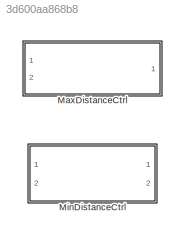
MODEL slx_3d600aa868b8
KIND library
CONFIG AbsTol = auto
CONFIG EnableMultiTasking = off
CONFIG FixedStep = auto
CONFIG MaxStep = auto
CONFIG MinStep = auto
CONFIG RelTol = 1e-3
CONFIG SampleTimeConstraint = Unconstrained
CONFIG Solver = VariableStepAuto
CONFIG SolverName = VariableStepAuto
CONFIG StartTime = 0.0
CONFIG StopTime = 10.0
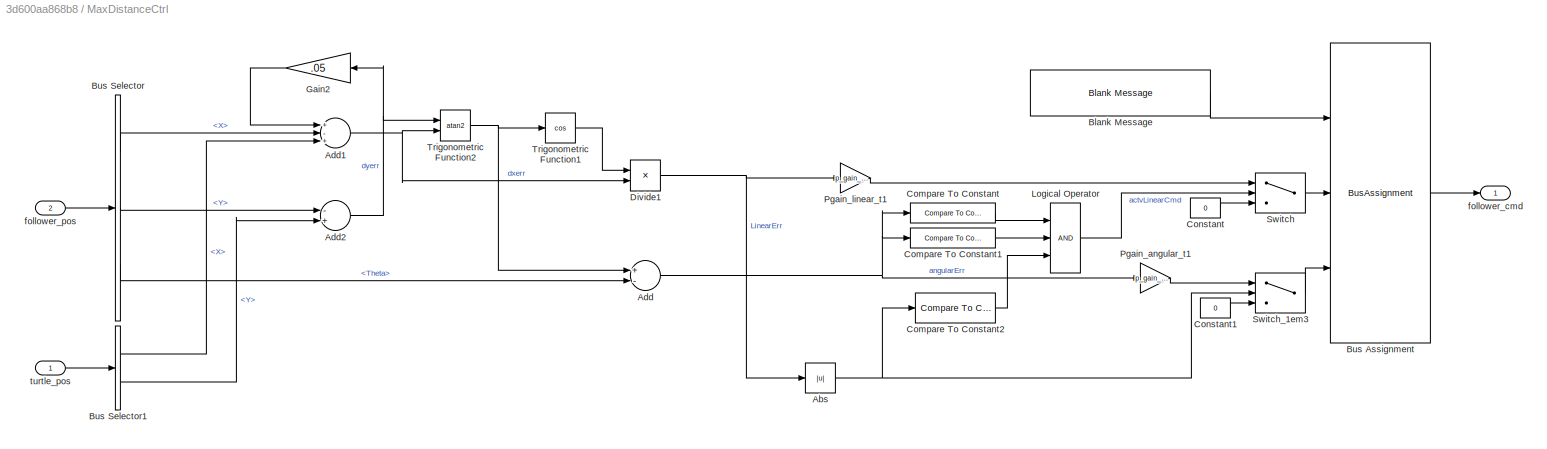
BLOCK [SubSystem] MaxDistanceCtrl
  Ports = [2, 1]
  RequestExecContextInheritance = off
  Variant = off
BLOCK [Abs] MaxDistanceCtrl/Abs
  SaturateOnIntegerOverflow = off
BLOCK [Sum] MaxDistanceCtrl/Add
  InputSameDT = off
  Inputs = +-
  OutDataTypeStr = Inherit: Inherit via internal rule
  Ports = [2, 1]
  SaturateOnIntegerOverflow = off
BLOCK [Sum] MaxDistanceCtrl/Add1
  InputSameDT = off
  Inputs = +-+
  OutDataTypeStr = Inherit: Inherit via internal rule
  Ports = [3, 1]
  SaturateOnIntegerOverflow = off
BLOCK [Sum] MaxDistanceCtrl/Add2
  InputSameDT = off
  Inputs = -+
  OutDataTypeStr = Inherit: Inherit via internal rule
  Ports = [2, 1]
  SaturateOnIntegerOverflow = off
BLOCK [Reference] MaxDistanceCtrl/Blank Message  REF=robotlib/Blank Message
  Ports = [0, 1]
  SourceBlock = robotlib/Blank Message
  SourceLibraryInfo = This block requires Robotics System Toolbox
  SourceProductBaseCode = RO
  SourceProductName = Robotics System Toolbox
  SourceType = ROS Blank Message
BLOCK [BusAssignment] MaxDistanceCtrl/Bus Assignment
  AssignedSignals = Linear.X,Angular.Z
  Ports = [3, 1]
BLOCK [BusSelector] MaxDistanceCtrl/Bus Selector
  OutputAsBus = off
  OutputSignals = X,Y,Theta
  Ports = [1, 3]
BLOCK [BusSelector] MaxDistanceCtrl/Bus Selector1
  OutputAsBus = off
  OutputSignals = X,Y
  Ports = [1, 2]
BLOCK [Reference] MaxDistanceCtrl/Compare To Constant  REF=simulink/Logic and Bit
Operations/Compare
To Constant
  Ports = [1, 1]
  SourceBlock = simulink/Logic and Bit\nOperations/Compare\nTo Constant
  SourceProductBaseCode = SL
  SourceProductName = Simulink
  SourceType = Compare To Constant
BLOCK [Reference] MaxDistanceCtrl/Compare To Constant1  REF=simulink/Logic and Bit
Operations/Compare
To Constant
  Ports = [1, 1]
  SourceBlock = simulink/Logic and Bit\nOperations/Compare\nTo Constant
  SourceProductBaseCode = SL
  SourceProductName = Simulink
  SourceType = Compare To Constant
BLOCK [Reference] MaxDistanceCtrl/Compare To Constant2  REF=simulink/Logic and Bit
Operations/Compare
To Constant
  Ports = [1, 1]
  SourceBlock = simulink/Logic and Bit\nOperations/Compare\nTo Constant
  SourceProductBaseCode = SL
  SourceProductName = Simulink
  SourceType = Compare To Constant
BLOCK [Constant] MaxDistanceCtrl/Constant
  Value = 0
BLOCK [Constant] MaxDistanceCtrl/Constant1
  Value = 0
BLOCK [Product] MaxDistanceCtrl/Divide1
  InputSameDT = off
  Inputs = /*
  OutDataTypeStr = Inherit: Inherit via internal rule
  Ports = [2, 1]
  RndMeth = Floor
  SaturateOnIntegerOverflow = off
BLOCK [Gain] MaxDistanceCtrl/Gain2
  Gain = .05
  OutDataTypeStr = Inherit: Inherit via internal rule
  ParamDataTypeStr = Inherit: Inherit via internal rule
  SaturateOnIntegerOverflow = off
BLOCK [Logic] MaxDistanceCtrl/Logical Operator
  AllPortsSameDT = off
  Inputs = 3
  OutDataTypeStr = boolean
  Ports = [3, 1]
BLOCK [Gain] MaxDistanceCtrl/Pgain_angular_t1
  Gain = p_gain_angular
  OutDataTypeStr = Inherit: Inherit via internal rule
  ParamDataTypeStr = Inherit: Inherit via internal rule
  SaturateOnIntegerOverflow = off
BLOCK [Gain] MaxDistanceCtrl/Pgain_linear_t1
  Gain = p_gain_linear
  OutDataTypeStr = Inherit: Inherit via internal rule
  ParamDataTypeStr = Inherit: Inherit via internal rule
  SaturateOnIntegerOverflow = off
BLOCK [Switch] MaxDistanceCtrl/Switch
  Criteria = u2 ~= 0
  InputSameDT = off
  SaturateOnIntegerOverflow = off
BLOCK [Switch] MaxDistanceCtrl/Switch_1em3
  Criteria = u2 > Threshold
  InputSameDT = off
  SaturateOnIntegerOverflow = off
  Threshold = 1e-3
BLOCK [Trigonometry] MaxDistanceCtrl/Trigonometric Function1
  Operator = cos
  Ports = [1, 1]
BLOCK [Trigonometry] MaxDistanceCtrl/Trigonometric Function2
  Operator = atan2
  Ports = [2, 1]
BLOCK [Outport] MaxDistanceCtrl/follower_cmd
  IconDisplay = Port number
BLOCK [Inport] MaxDistanceCtrl/follower_pos
  IconDisplay = Port number
  Port = 2
BLOCK [Inport] MaxDistanceCtrl/turtle_pos
  IconDisplay = Port number
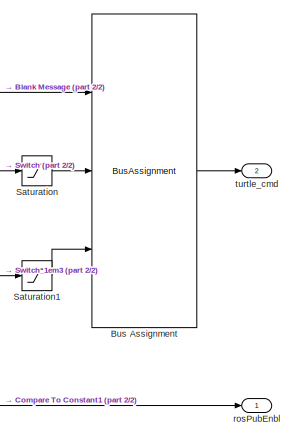
[diagram: MinDistanceCtrl - part 1/2, middle right region]
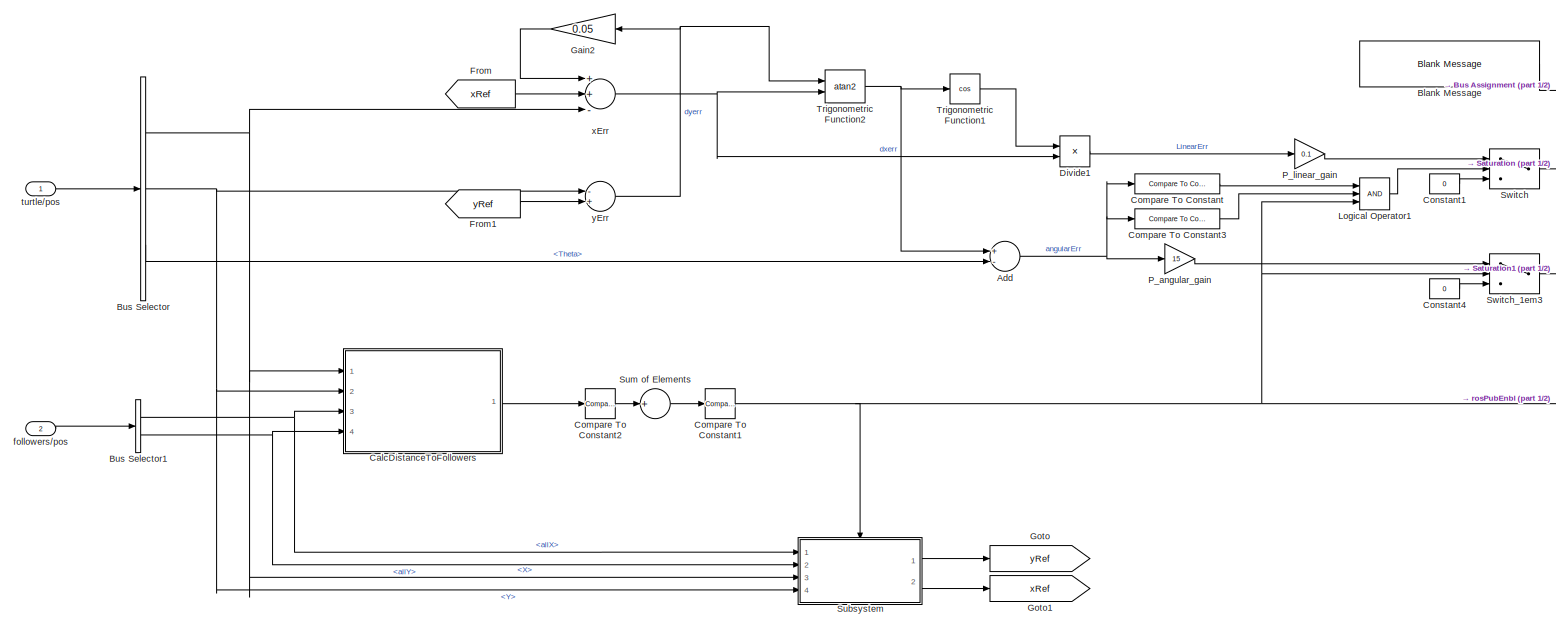
[diagram: MinDistanceCtrl - part 2/2, most of the canvas]
BLOCK [SubSystem] MinDistanceCtrl
  Ports = [2, 2]
  RequestExecContextInheritance = off
  Variant = off
BLOCK [Sum] MinDistanceCtrl/Add
  InputSameDT = off
  Inputs = +-
  OutDataTypeStr = Inherit: Inherit via internal rule
  Ports = [2, 1]
  SaturateOnIntegerOverflow = off
BLOCK [Reference] MinDistanceCtrl/Blank Message  REF=robotlib/Blank Message
  Ports = [0, 1]
  SourceBlock = robotlib/Blank Message
  SourceLibraryInfo = This block requires Robotics System Toolbox
  SourceProductBaseCode = RO
  SourceProductName = Robotics System Toolbox
  SourceType = ROS Blank Message
BLOCK [BusAssignment] MinDistanceCtrl/Bus Assignment
  AssignedSignals = Linear.X,Angular.Z
  Ports = [3, 1]
BLOCK [BusSelector] MinDistanceCtrl/Bus Selector
  OutputAsBus = off
  OutputSignals = X,Y,Theta
  Ports = [1, 3]
BLOCK [BusSelector] MinDistanceCtrl/Bus Selector1
  OutputAsBus = off
  OutputSignals = allX,allY
  Ports = [1, 2]
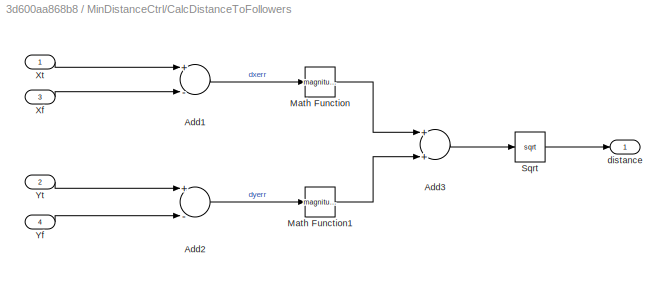
BLOCK [SubSystem] MinDistanceCtrl/CalcDistanceToFollowers
  Ports = [4, 1]
  RequestExecContextInheritance = off
  TreatAsAtomicUnit = on
  Variant = off
BLOCK [Sum] MinDistanceCtrl/CalcDistanceToFollowers/Add1
  InputSameDT = off
  Inputs = +-
  OutDataTypeStr = Inherit: Inherit via internal rule
  Ports = [2, 1]
  SaturateOnIntegerOverflow = off
BLOCK [Sum] MinDistanceCtrl/CalcDistanceToFollowers/Add2
  InputSameDT = off
  Inputs = +-
  OutDataTypeStr = Inherit: Inherit via internal rule
  Ports = [2, 1]
  SaturateOnIntegerOverflow = off
BLOCK [Sum] MinDistanceCtrl/CalcDistanceToFollowers/Add3
  InputSameDT = off
  OutDataTypeStr = Inherit: Inherit via internal rule
  Ports = [2, 1]
  SaturateOnIntegerOverflow = off
BLOCK [Math] MinDistanceCtrl/CalcDistanceToFollowers/Math Function
  Operator = magnitude^2
  Ports = [1, 1]
BLOCK [Math] MinDistanceCtrl/CalcDistanceToFollowers/Math Function1
  Operator = magnitude^2
  Ports = [1, 1]
BLOCK [Sqrt] MinDistanceCtrl/CalcDistanceToFollowers/Sqrt
BLOCK [Inport] MinDistanceCtrl/CalcDistanceToFollowers/Xf
  IconDisplay = Port number
  Port = 3
BLOCK [Inport] MinDistanceCtrl/CalcDistanceToFollowers/Xt
  IconDisplay = Port number
BLOCK [Inport] MinDistanceCtrl/CalcDistanceToFollowers/Yf
  IconDisplay = Port number
  Port = 4
BLOCK [Inport] MinDistanceCtrl/CalcDistanceToFollowers/Yt
  IconDisplay = Port number
  Port = 2
BLOCK [Outport] MinDistanceCtrl/CalcDistanceToFollowers/distance
  IconDisplay = Port number
BLOCK [Reference] MinDistanceCtrl/Compare To Constant  REF=simulink/Logic and Bit
Operations/Compare
To Constant
  Ports = [1, 1]
  SourceBlock = simulink/Logic and Bit\nOperations/Compare\nTo Constant
  SourceProductBaseCode = SL
  SourceProductName = Simulink
  SourceType = Compare To Constant
BLOCK [Reference] MinDistanceCtrl/Compare To Constant1  REF=simulink/Logic and Bit
Operations/Compare
To Constant
  Ports = [1, 1]
  SourceBlock = simulink/Logic and Bit\nOperations/Compare\nTo Constant
  SourceProductBaseCode = SL
  SourceProductName = Simulink
  SourceType = Compare To Constant
BLOCK [Reference] MinDistanceCtrl/Compare To Constant2  REF=simulink/Logic and Bit
Operations/Compare
To Constant
  Ports = [1, 1]
  SourceBlock = simulink/Logic and Bit\nOperations/Compare\nTo Constant
  SourceProductBaseCode = SL
  SourceProductName = Simulink
  SourceType = Compare To Constant
BLOCK [Reference] MinDistanceCtrl/Compare To Constant3  REF=simulink/Logic and Bit
Operations/Compare
To Constant
  Ports = [1, 1]
  SourceBlock = simulink/Logic and Bit\nOperations/Compare\nTo Constant
  SourceProductBaseCode = SL
  SourceProductName = Simulink
  SourceType = Compare To Constant
BLOCK [Constant] MinDistanceCtrl/Constant1
  Value = 0
BLOCK [Constant] MinDistanceCtrl/Constant4
  Value = 0
BLOCK [Product] MinDistanceCtrl/Divide1
  InputSameDT = off
  Inputs = /*
  OutDataTypeStr = Inherit: Inherit via internal rule
  Ports = [2, 1]
  RndMeth = Floor
  SaturateOnIntegerOverflow = off
BLOCK [From] MinDistanceCtrl/From
  GotoTag = xRef
BLOCK [From] MinDistanceCtrl/From1
  GotoTag = yRef
BLOCK [Gain] MinDistanceCtrl/Gain2
  Gain = 0.05
  OutDataTypeStr = Inherit: Inherit via internal rule
  ParamDataTypeStr = Inherit: Inherit via internal rule
  SaturateOnIntegerOverflow = off
BLOCK [Goto] MinDistanceCtrl/Goto
  GotoTag = yRef
BLOCK [Goto] MinDistanceCtrl/Goto1
  GotoTag = xRef
BLOCK [Logic] MinDistanceCtrl/Logical Operator1
  AllPortsSameDT = off
  Inputs = 3
  OutDataTypeStr = boolean
  Ports = [3, 1]
BLOCK [Gain] MinDistanceCtrl/P_angular_gain
  Gain = 15
  OutDataTypeStr = Inherit: Inherit via internal rule
  ParamDataTypeStr = Inherit: Inherit via internal rule
  SaturateOnIntegerOverflow = off
BLOCK [Gain] MinDistanceCtrl/P_linear_gain
  Gain = 0.1
  OutDataTypeStr = Inherit: Inherit via internal rule
  ParamDataTypeStr = Inherit: Inherit via internal rule
  SaturateOnIntegerOverflow = off
BLOCK [Saturate] MinDistanceCtrl/Saturation
  InputPortMap = u0
  LowerLimit = -10
  Ports = [1, 1]
  UpperLimit = 10
BLOCK [Saturate] MinDistanceCtrl/Saturation1
  InputPortMap = u0
  LowerLimit = -10
  Ports = [1, 1]
  UpperLimit = 10
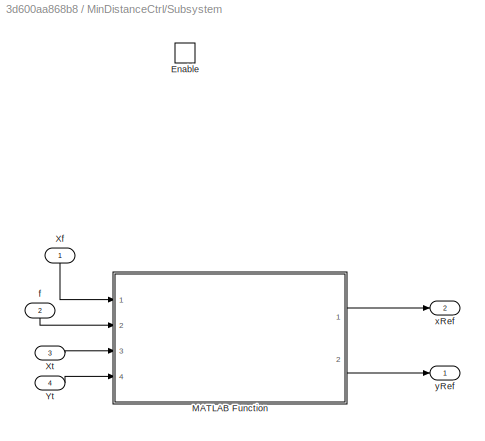
BLOCK [SubSystem] MinDistanceCtrl/Subsystem
  Ports = [4, 2, 1]
  RequestExecContextInheritance = off
  Variant = off
BLOCK [EnablePort] MinDistanceCtrl/Subsystem/Enable
  Ports = []
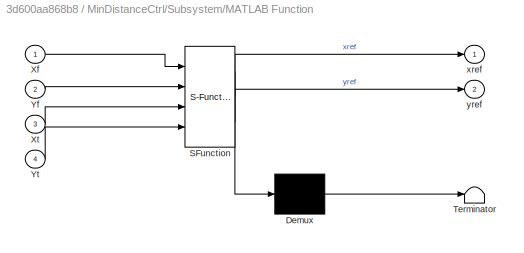
BLOCK [SubSystem] MinDistanceCtrl/Subsystem/MATLAB Function
  ErrorFcn = Stateflow.Translate.translate
  PermitHierarchicalResolution = ExplicitOnly
  Ports = [4, 2]
  RequestExecContextInheritance = off
  SFBlockType = MATLAB Function
  TreatAsAtomicUnit = on
  Variant = off
BLOCK [Demux] MinDistanceCtrl/Subsystem/MATLAB Function/ Demux 
  Outputs = 1
  Ports = [1, 1]
BLOCK [S-Function] MinDistanceCtrl/Subsystem/MATLAB Function/ SFunction 
  EnableBusSupport = on
  FunctionName = sf_sfun
  PortCounts = [4 3]
  Ports = [4, 3]
  SFcnIsStateOwnerBlock = off
  SFunctionDeploymentMode = off
  Tag = Stateflow S-Function TurtleCtrlLib 2
BLOCK [Terminator] MinDistanceCtrl/Subsystem/MATLAB Function/ Terminator 
BLOCK [Inport] MinDistanceCtrl/Subsystem/MATLAB Function/Xf
  IconDisplay = Port number
BLOCK [Inport] MinDistanceCtrl/Subsystem/MATLAB Function/Xt
  IconDisplay = Port number
  Port = 3
BLOCK [Inport] MinDistanceCtrl/Subsystem/MATLAB Function/Yf
  IconDisplay = Port number
  Port = 2
BLOCK [Inport] MinDistanceCtrl/Subsystem/MATLAB Function/Yt
  IconDisplay = Port number
  Port = 4
BLOCK [Outport] MinDistanceCtrl/Subsystem/MATLAB Function/xref
  IconDisplay = Port number
BLOCK [Outport] MinDistanceCtrl/Subsystem/MATLAB Function/yref
  IconDisplay = Port number
  Port = 2
BLOCK [Inport] MinDistanceCtrl/Subsystem/Xf
  IconDisplay = Port number
BLOCK [Inport] MinDistanceCtrl/Subsystem/Xt
  IconDisplay = Port number
  Port = 3
BLOCK [Inport] MinDistanceCtrl/Subsystem/Yt
  IconDisplay = Port number
  Port = 4
BLOCK [Inport] MinDistanceCtrl/Subsystem/f
  IconDisplay = Port number
  Port = 2
BLOCK [Outport] MinDistanceCtrl/Subsystem/xRef
  IconDisplay = Port number
  Port = 2
BLOCK [Outport] MinDistanceCtrl/Subsystem/yRef
  IconDisplay = Port number
BLOCK [Sum] MinDistanceCtrl/Sum of Elements
  InputSameDT = off
  Inputs = +
  OutDataTypeStr = Inherit: Inherit via internal rule
  Ports = [1, 1]
  SaturateOnIntegerOverflow = off
BLOCK [Switch] MinDistanceCtrl/Switch
  Criteria = u2 ~= 0
  InputSameDT = off
  SaturateOnIntegerOverflow = off
BLOCK [Switch] MinDistanceCtrl/Switch_1em3
  Criteria = u2 ~= 0
  InputSameDT = off
  SaturateOnIntegerOverflow = off
  Threshold = 1e-3
BLOCK [Trigonometry] MinDistanceCtrl/Trigonometric Function1
  Operator = cos
  Ports = [1, 1]
BLOCK [Trigonometry] MinDistanceCtrl/Trigonometric Function2
  Operator = atan2
  Ports = [2, 1]
BLOCK [Inport] MinDistanceCtrl/followers//pos
  IconDisplay = Port number
  Port = 2
BLOCK [Outport] MinDistanceCtrl/rosPubEnbl
  IconDisplay = Port number
BLOCK [Inport] MinDistanceCtrl/turtle//pos
  IconDisplay = Port number
BLOCK [Outport] MinDistanceCtrl/turtle_cmd
  IconDisplay = Port number
  Port = 2
BLOCK [Sum] MinDistanceCtrl/xErr
  InputSameDT = off
  Inputs = ++-
  OutDataTypeStr = Inherit: Inherit via internal rule
  Ports = [3, 1]
  SaturateOnIntegerOverflow = off
BLOCK [Sum] MinDistanceCtrl/yErr
  InputSameDT = off
  Inputs = -+
  OutDataTypeStr = Inherit: Inherit via internal rule
  Ports = [2, 1]
  SaturateOnIntegerOverflow = off
NET MaxDistanceCtrl/Abs:1 -> MaxDistanceCtrl/Compare To Constant2:1, MaxDistanceCtrl/Switch_1em3:2
NET MaxDistanceCtrl/Add1:1 -> MaxDistanceCtrl/Divide1:2, MaxDistanceCtrl/Trigonometric Function2:2
NET MaxDistanceCtrl/Add2:1 -> MaxDistanceCtrl/Gain2:1, MaxDistanceCtrl/Trigonometric Function2:1
NET MaxDistanceCtrl/Add:1 -> MaxDistanceCtrl/Compare To Constant1:1, MaxDistanceCtrl/Compare To Constant:1, MaxDistanceCtrl/Pgain_angular_t1:1
LINE MaxDistanceCtrl/Blank Message:1 -> MaxDistanceCtrl/Bus Assignment:1
LINE MaxDistanceCtrl/Bus Assignment:1 -> MaxDistanceCtrl/follower_cmd:1
LINE MaxDistanceCtrl/Bus Selector1:1 -> MaxDistanceCtrl/Add1:3
LINE MaxDistanceCtrl/Bus Selector1:2 -> MaxDistanceCtrl/Add2:2
LINE MaxDistanceCtrl/Bus Selector:1 -> MaxDistanceCtrl/Add1:2
LINE MaxDistanceCtrl/Bus Selector:2 -> MaxDistanceCtrl/Add2:1
LINE MaxDistanceCtrl/Bus Selector:3 -> MaxDistanceCtrl/Add:2
LINE MaxDistanceCtrl/Compare To Constant1:1 -> MaxDistanceCtrl/Logical Operator:2
LINE MaxDistanceCtrl/Compare To Constant2:1 -> MaxDistanceCtrl/Logical Operator:3
LINE MaxDistanceCtrl/Compare To Constant:1 -> MaxDistanceCtrl/Logical Operator:1
LINE MaxDistanceCtrl/Constant1:1 -> MaxDistanceCtrl/Switch_1em3:3
LINE MaxDistanceCtrl/Constant:1 -> MaxDistanceCtrl/Switch:3
NET MaxDistanceCtrl/Divide1:1 -> MaxDistanceCtrl/Abs:1, MaxDistanceCtrl/Pgain_linear_t1:1
LINE MaxDistanceCtrl/Gain2:1 -> MaxDistanceCtrl/Add1:1
LINE MaxDistanceCtrl/Logical Operator:1 -> MaxDistanceCtrl/Switch:2
LINE MaxDistanceCtrl/Pgain_angular_t1:1 -> MaxDistanceCtrl/Switch_1em3:1
LINE MaxDistanceCtrl/Pgain_linear_t1:1 -> MaxDistanceCtrl/Switch:1
LINE MaxDistanceCtrl/Switch:1 -> MaxDistanceCtrl/Bus Assignment:2
LINE MaxDistanceCtrl/Switch_1em3:1 -> MaxDistanceCtrl/Bus Assignment:3
LINE MaxDistanceCtrl/Trigonometric Function1:1 -> MaxDistanceCtrl/Divide1:1
NET MaxDistanceCtrl/Trigonometric Function2:1 -> MaxDistanceCtrl/Add:1, MaxDistanceCtrl/Trigonometric Function1:1
LINE MaxDistanceCtrl/follower_pos:1 -> MaxDistanceCtrl/Bus Selector:1
LINE MaxDistanceCtrl/turtle_pos:1 -> MaxDistanceCtrl/Bus Selector1:1
NET MinDistanceCtrl/Add:1 -> MinDistanceCtrl/Compare To Constant3:1, MinDistanceCtrl/Compare To Constant:1, MinDistanceCtrl/P_angular_gain:1
LINE MinDistanceCtrl/Blank Message:1 -> MinDistanceCtrl/Bus Assignment:1
LINE MinDistanceCtrl/Bus Assignment:1 -> MinDistanceCtrl/turtle_cmd:1
NET MinDistanceCtrl/Bus Selector1:1 -> MinDistanceCtrl/CalcDistanceToFollowers:3, MinDistanceCtrl/Subsystem:1
NET MinDistanceCtrl/Bus Selector1:2 -> MinDistanceCtrl/CalcDistanceToFollowers:4, MinDistanceCtrl/Subsystem:2
NET MinDistanceCtrl/Bus Selector:1 -> MinDistanceCtrl/CalcDistanceToFollowers:1, MinDistanceCtrl/Subsystem:3, MinDistanceCtrl/xErr:3
NET MinDistanceCtrl/Bus Selector:2 -> MinDistanceCtrl/CalcDistanceToFollowers:2, MinDistanceCtrl/Subsystem:4, MinDistanceCtrl/yErr:1
LINE MinDistanceCtrl/Bus Selector:3 -> MinDistanceCtrl/Add:2
LINE MinDistanceCtrl/CalcDistanceToFollowers/Add1:1 -> MinDistanceCtrl/CalcDistanceToFollowers/Math Function:1
LINE MinDistanceCtrl/CalcDistanceToFollowers/Add2:1 -> MinDistanceCtrl/CalcDistanceToFollowers/Math Function1:1
LINE MinDistanceCtrl/CalcDistanceToFollowers/Add3:1 -> MinDistanceCtrl/CalcDistanceToFollowers/Sqrt:1
LINE MinDistanceCtrl/CalcDistanceToFollowers/Math Function1:1 -> MinDistanceCtrl/CalcDistanceToFollowers/Add3:2
LINE MinDistanceCtrl/CalcDistanceToFollowers/Math Function:1 -> MinDistanceCtrl/CalcDistanceToFollowers/Add3:1
LINE MinDistanceCtrl/CalcDistanceToFollowers/Sqrt:1 -> MinDistanceCtrl/CalcDistanceToFollowers/distance:1
LINE MinDistanceCtrl/CalcDistanceToFollowers/Xf:1 -> MinDistanceCtrl/CalcDistanceToFollowers/Add1:2
LINE MinDistanceCtrl/CalcDistanceToFollowers/Xt:1 -> MinDistanceCtrl/CalcDistanceToFollowers/Add1:1
LINE MinDistanceCtrl/CalcDistanceToFollowers/Yf:1 -> MinDistanceCtrl/CalcDistanceToFollowers/Add2:2
LINE MinDistanceCtrl/CalcDistanceToFollowers/Yt:1 -> MinDistanceCtrl/CalcDistanceToFollowers/Add2:1
LINE MinDistanceCtrl/CalcDistanceToFollowers:1 -> MinDistanceCtrl/Compare To Constant2:1
NET MinDistanceCtrl/Compare To Constant1:1 -> MinDistanceCtrl/Logical Operator1:3, MinDistanceCtrl/Subsystem:enable, MinDistanceCtrl/Switch_1em3:2, MinDistanceCtrl/rosPubEnbl:1
LINE MinDistanceCtrl/Compare To Constant2:1 -> MinDistanceCtrl/Sum of Elements:1
LINE MinDistanceCtrl/Compare To Constant3:1 -> MinDistanceCtrl/Logical Operator1:2
LINE MinDistanceCtrl/Compare To Constant:1 -> MinDistanceCtrl/Logical Operator1:1
LINE MinDistanceCtrl/Constant1:1 -> MinDistanceCtrl/Switch:3
LINE MinDistanceCtrl/Constant4:1 -> MinDistanceCtrl/Switch_1em3:3
LINE MinDistanceCtrl/Divide1:1 -> MinDistanceCtrl/P_linear_gain:1
LINE MinDistanceCtrl/From1:1 -> MinDistanceCtrl/yErr:2
LINE MinDistanceCtrl/From:1 -> MinDistanceCtrl/xErr:2
LINE MinDistanceCtrl/Gain2:1 -> MinDistanceCtrl/xErr:1
LINE MinDistanceCtrl/Logical Operator1:1 -> MinDistanceCtrl/Switch:2
LINE MinDistanceCtrl/P_angular_gain:1 -> MinDistanceCtrl/Switch_1em3:1
LINE MinDistanceCtrl/P_linear_gain:1 -> MinDistanceCtrl/Switch:1
LINE MinDistanceCtrl/Saturation1:1 -> MinDistanceCtrl/Bus Assignment:3
LINE MinDistanceCtrl/Saturation:1 -> MinDistanceCtrl/Bus Assignment:2
LINE MinDistanceCtrl/Subsystem/MATLAB Function:1 -> MinDistanceCtrl/Subsystem/xRef:1
LINE MinDistanceCtrl/Subsystem/MATLAB Function:2 -> MinDistanceCtrl/Subsystem/yRef:1
LINE MinDistanceCtrl/Subsystem/Xf:1 -> MinDistanceCtrl/Subsystem/MATLAB Function:1
LINE MinDistanceCtrl/Subsystem/Xt:1 -> MinDistanceCtrl/Subsystem/MATLAB Function:3
LINE MinDistanceCtrl/Subsystem/Yt:1 -> MinDistanceCtrl/Subsystem/MATLAB Function:4
LINE MinDistanceCtrl/Subsystem/f:1 -> MinDistanceCtrl/Subsystem/MATLAB Function:2
LINE MinDistanceCtrl/Subsystem:1 -> MinDistanceCtrl/Goto:1
LINE MinDistanceCtrl/Subsystem:2 -> MinDistanceCtrl/Goto1:1
LINE MinDistanceCtrl/Sum of Elements:1 -> MinDistanceCtrl/Compare To Constant1:1
LINE MinDistanceCtrl/Switch:1 -> MinDistanceCtrl/Saturation:1
LINE MinDistanceCtrl/Switch_1em3:1 -> MinDistanceCtrl/Saturation1:1
LINE MinDistanceCtrl/Trigonometric Function1:1 -> MinDistanceCtrl/Divide1:1
NET MinDistanceCtrl/Trigonometric Function2:1 -> MinDistanceCtrl/Add:1, MinDistanceCtrl/Trigonometric Function1:1
LINE MinDistanceCtrl/followers//pos:1 -> MinDistanceCtrl/Bus Selector1:1
LINE MinDistanceCtrl/turtle//pos:1 -> MinDistanceCtrl/Bus Selector:1
NET MinDistanceCtrl/xErr:1 -> MinDistanceCtrl/Divide1:2, MinDistanceCtrl/Trigonometric Function2:2
NET MinDistanceCtrl/yErr:1 -> MinDistanceCtrl/Gain2:1, MinDistanceCtrl/Trigonometric Function2:1
note: NET lines group one-source signal fan-out (src -> all destinations, sorted); 1:1 wires keep LINE
CHART MinDistanceCtrl/Subsystem/MATLAB Function states=1 transitions=1
  STATE_LABEL 'eML_blk_kernel()'
  STATE_LABEL 'SCRIPT:\nfunction [xref,yref]= fcn(Xf,Yf,Xt,Yt)\n\ncoeff_f = polyfit(Xf,Yf,1);\n\nmean_xf = mean(Xf);\nmean_yf = polyval(coeff_f,mean_xf)\n\nfi=atan(coeff_f(1));\ntan_fi=tan(fi);\n\nif(tan_fi>0)\n    si=(pi/2)+double(fi);\nelseif(tan_fi<0)\n    si=double(fi)-(pi/2);\nelse\n    si=pi/2;\nend\n\ntan_si= tan(si)\nb = mean_yf - mean_xf*tan_si;\ncoeff_t=[tan_si b];\n\ny_tmp = polyval(coeff_f,Xt);\nif(Yt > y_tmp && tan_fi>0) |...<+415ch>'
